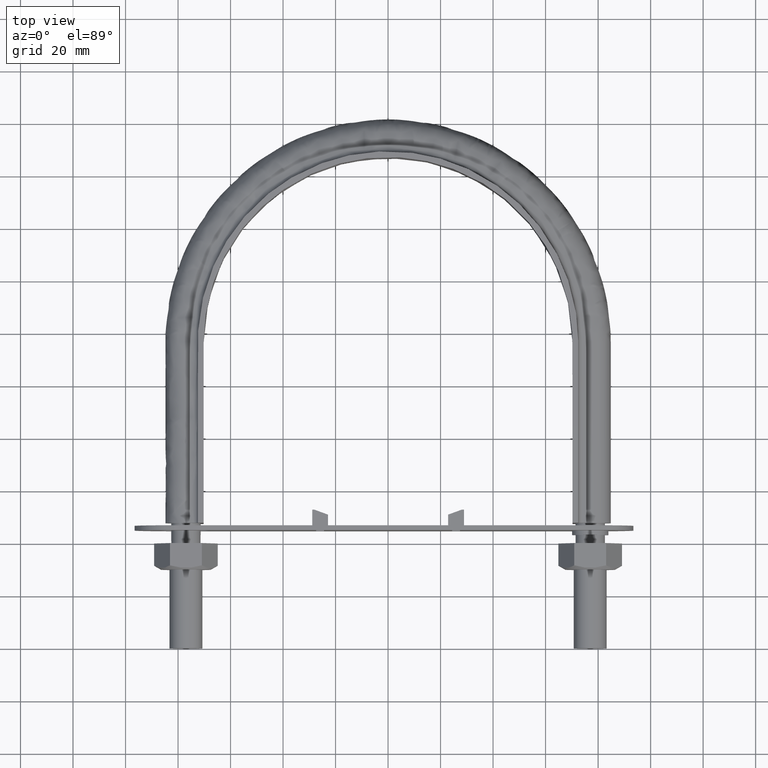
[diagram: clean part render]
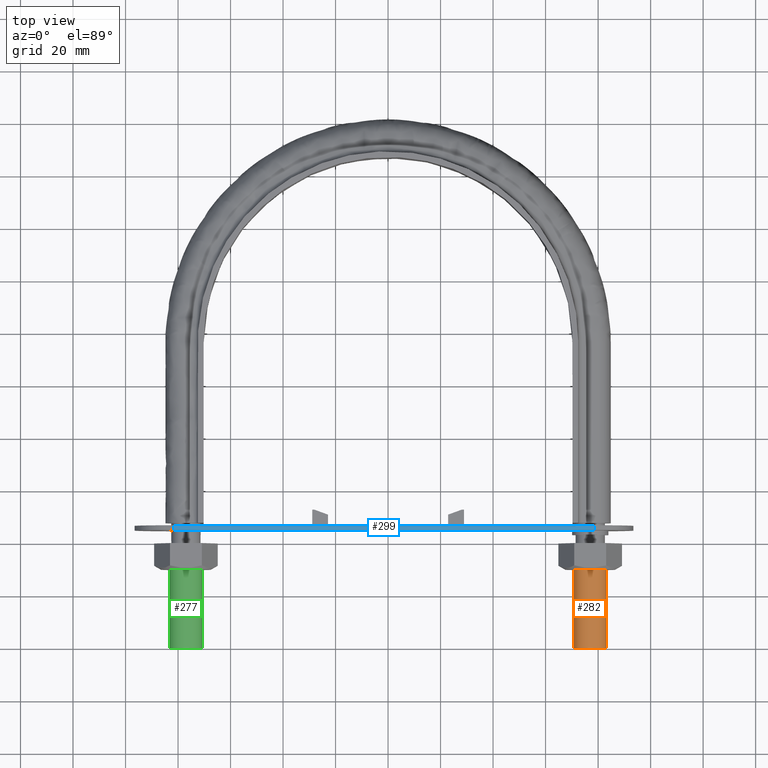
[diagram: same view with three faces highlighted in distinct colors, each labeled with its STEP entity id]
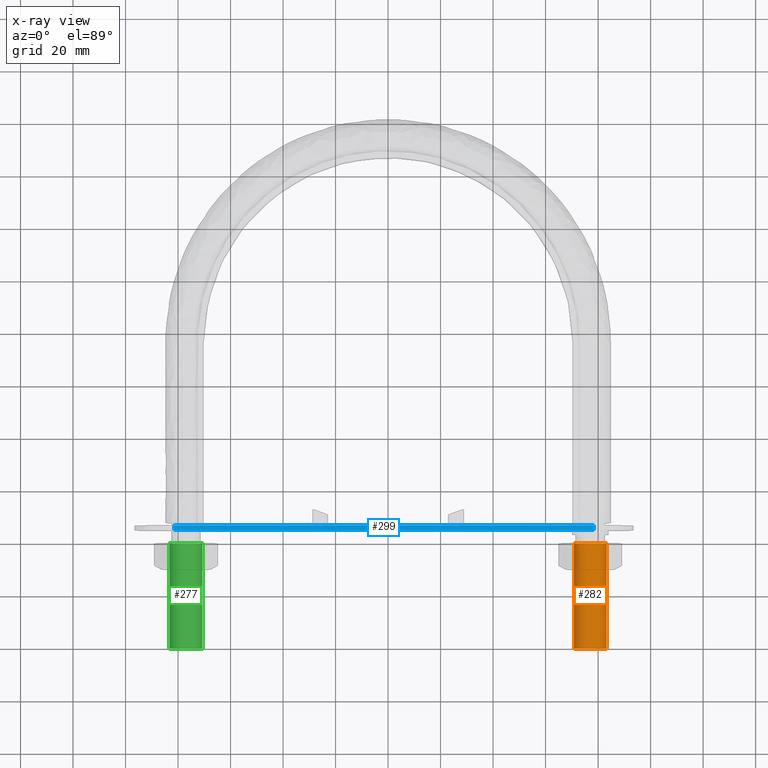
[diagram: x-ray of the same camera — body ghosted, the three highlighted faces saturated]
A machine part, top view with three faces highlighted in distinct colors.
The next image is the same camera in x-ray (body ghosted, the three faces saturated) — at least one of them is partly hidden behind the body in this view.
Their STEP definitions:

[orange] entity #282 — the highlighted cylindrical surface (bore or boss wall) has radius 6.25 mm, axis along (0, 1, -0).
#282 = ADVANCED_FACE( '', ( #384, #385 ), #386, .T. );
#384 = FACE_OUTER_BOUND( '', #1417, .T. );
#385 = FACE_OUTER_BOUND( '', #1418, .T. );
#386 = CYLINDRICAL_SURFACE( '', #1419, 6.25000000000001 );
#1417 = EDGE_LOOP( '', ( #1685 ) );
#1418 = EDGE_LOOP( '', ( #1686 ) );
#1419 = AXIS2_PLACEMENT_3D( '', #1687, #1688, #1689 );
#1685 = ORIENTED_EDGE( '', *, *, #2176, .T. );
#1686 = ORIENTED_EDGE( '', *, *, #2174, .F. );
#1687 = CARTESIAN_POINT( '', ( 77.0000000000000, 40.0000000000000, -1.22460635382238E-014 ) );
#1688 = DIRECTION( '', ( 2.44921270764476E-016, 1.00000000000000, -3.06151588455594E-016 ) );
#1689 = DIRECTION( '', ( 1.00000000000000, -2.44921270764475E-016, 0.000000000000000 ) );
#2174 = EDGE_CURVE( '', #2373, #2373, #2374, .T. );
#2176 = EDGE_CURVE( '', #2377, #2377, #2378, .T. );
#2373 = VERTEX_POINT( '', #2863 );
#2374 = CIRCLE( '', #2864, 6.25000000000001 );
#2377 = VERTEX_POINT( '', #2867 );
#2378 = CIRCLE( '', #2868, 6.25000000000001 );
#2863 = CARTESIAN_POINT( '', ( 83.2500000000000, -1.09602268667103E-014, 0.000000000000000 ) );
#2864 = AXIS2_PLACEMENT_3D( '', #3340, #3341, #3342 );
#2867 = CARTESIAN_POINT( '', ( 83.2500000000000, 40.0000000000000, -1.22460635382238E-014 ) );
#2868 = AXIS2_PLACEMENT_3D( '', #3346, #3347, #3348 );
#3340 = CARTESIAN_POINT( '', ( 77.0000000000000, -9.42946892443230E-015, 4.71701209382677E-046 ) );
#3341 = DIRECTION( '', ( -2.44921270764475E-016, -1.00000000000000, 3.06151588455594E-016 ) );
#3342 = DIRECTION( '', ( 1.00000000000000, -2.44921270764475E-016, -7.54721935012283E-047 ) );
#3346 = CARTESIAN_POINT( '', ( 77.0000000000000, 40.0000000000000, -1.22460635382238E-014 ) );
#3347 = DIRECTION( '', ( -2.44921270764475E-016, -1.00000000000000, 3.06151588455594E-016 ) );
#3348 = DIRECTION( '', ( 1.00000000000000, -2.44921270764475E-016, -7.54721935012283E-047 ) );

[blue] entity #299 — the highlighted planar face has unit normal (0, -0, 1).
#299 = ADVANCED_FACE( '', ( #428 ), #429, .T. );
#428 = FACE_OUTER_BOUND( '', #1461, .T. );
#429 = PLANE( '', #1462 );
#1461 = EDGE_LOOP( '', ( #1830, #1831, #1832, #1833 ) );
#1462 = AXIS2_PLACEMENT_3D( '', #1834, #1835, #1836 );
#1830 = ORIENTED_EDGE( '', *, *, #2182, .F. );
#1831 = ORIENTED_EDGE( '', *, *, #2198, .F. );
#1832 = ORIENTED_EDGE( '', *, *, #2225, .T. );
#1833 = ORIENTED_EDGE( '', *, *, #2235, .T. );
#1834 = CARTESIAN_POINT( '', ( -81.5499999747987, 44.9100000002289, 15.0000001370384 ) );
#1835 = DIRECTION( '', ( 1.68042474379972E-009, -1.04599657885938E-013, 1.00000000000000 ) );
#1836 = DIRECTION( '', ( -1.00000000000000, 2.82548111446733E-012, 1.68042474379972E-009 ) );
#2182 = EDGE_CURVE( '', #2388, #2390, #2391, .T. );
#2198 = EDGE_CURVE( '', #2419, #2388, #2421, .T. );
#2225 = EDGE_CURVE( '', #2419, #2466, #2468, .T. );
#2235 = EDGE_CURVE( '', #2466, #2390, #2482, .T. );
#2388 = VERTEX_POINT( '', #2882 );
#2390 = VERTEX_POINT( '', #2884 );
#2391 = LINE( '', #2885, #2886 );
#2419 = VERTEX_POINT( '', #2922 );
#2421 = LINE( '', #2924, #2925 );
#2466 = VERTEX_POINT( '', #2992 );
#2468 = LINE( '', #2994, #2995 );
#2482 = LINE( '', #3015, #3016 );
#2882 = CARTESIAN_POINT( '', ( -81.5499999747936, 46.7100000002289, 15.0000001370386 ) );
#2884 = CARTESIAN_POINT( '', ( 78.4500000252064, 46.7099999997768, 14.9999998681707 ) );
#2885 = CARTESIAN_POINT( '', ( -81.5499999747936, 46.7100000002289, 15.0000001370386 ) );
#2886 = VECTOR( '', #3356, 1000.00000000000 );
#2922 = CARTESIAN_POINT( '', ( -81.5499999747987, 44.9100000002289, 15.0000001370384 ) );
#2924 = CARTESIAN_POINT( '', ( -81.5499999747987, 44.9100000002289, 15.0000001370384 ) );
#2925 = VECTOR( '', #3386, 1000.00000000000 );
#2992 = CARTESIAN_POINT( '', ( 78.4500000252013, 44.9099999997768, 14.9999998681705 ) );
#2994 = CARTESIAN_POINT( '', ( -81.5499999747987, 44.9100000002289, 15.0000001370384 ) );
#2995 = VECTOR( '', #3421, 1000.00000000000 );
#3015 = CARTESIAN_POINT( '', ( 78.4500000252013, 44.9099999997768, 14.9999998681705 ) );
#3016 = VECTOR( '', #3437, 1000.00000000000 );
#3356 = DIRECTION( '', ( 1.00000000000000, -2.82548111446733E-012, -1.68042474379972E-009 ) );
#3386 = DIRECTION( '', ( 2.82548111464310E-012, 1.00000000000000, 1.04599653137929E-013 ) );
#3421 = DIRECTION( '', ( 1.00000000000000, -2.82548111446733E-012, -1.68042474379972E-009 ) );
#3437 = DIRECTION( '', ( 2.82548111464310E-012, 1.00000000000000, 1.04599653137929E-013 ) );

[green] entity #277 — the highlighted cylindrical surface (bore or boss wall) has radius 6.25 mm, axis along (0, 1, -0).
#277 = ADVANCED_FACE( '', ( #370, #371 ), #372, .T. );
#370 = FACE_OUTER_BOUND( '', #1403, .T. );
#371 = FACE_OUTER_BOUND( '', #1404, .T. );
#372 = CYLINDRICAL_SURFACE( '', #1405, 6.25000000000001 );
#1403 = EDGE_LOOP( '', ( #1654 ) );
#1404 = EDGE_LOOP( '', ( #1655 ) );
#1405 = AXIS2_PLACEMENT_3D( '', #1656, #1657, #1658 );
#1654 = ORIENTED_EDGE( '', *, *, #2173, .T. );
#1655 = ORIENTED_EDGE( '', *, *, #2172, .F. );
#1656 = CARTESIAN_POINT( '', ( -77.0000000000000, 40.0000000000000, -1.22460635382238E-014 ) );
#1657 = DIRECTION( '', ( 2.44921270764476E-016, 1.00000000000000, -3.06151588455594E-016 ) );
#1658 = DIRECTION( '', ( 1.00000000000000, -2.44921270764475E-016, 0.000000000000000 ) );
#2172 = EDGE_CURVE( '', #2369, #2369, #2370, .T. );
#2173 = EDGE_CURVE( '', #2371, #2371, #2372, .T. );
#2369 = VERTEX_POINT( '', #2859 );
#2370 = CIRCLE( '', #2860, 6.25000000000001 );
#2371 = VERTEX_POINT( '', #2861 );
#2372 = CIRCLE( '', #2862, 6.25000000000001 );
#2859 = CARTESIAN_POINT( '', ( -70.7500000000000, 7.89871098215433E-015, 0.000000000000000 ) );
#2860 = AXIS2_PLACEMENT_3D( '', #3334, #3335, #3336 );
#2861 = CARTESIAN_POINT( '', ( -70.7500000000000, 40.0000000000000, -1.22460635382238E-014 ) );
#2862 = AXIS2_PLACEMENT_3D( '', #3337, #3338, #3339 );
#3334 = CARTESIAN_POINT( '', ( -77.0000000000000, 9.42946892443230E-015, -3.42113882891801E-046 ) );
#3335 = DIRECTION( '', ( -2.44921270764476E-016, -1.00000000000000, 3.06151588455594E-016 ) );
#3336 = DIRECTION( '', ( 1.00000000000000, -2.44921270764475E-016, 5.47382212626881E-047 ) );
#3337 = CARTESIAN_POINT( '', ( -77.0000000000000, 40.0000000000000, -1.22460635382238E-014 ) );
#3338 = DIRECTION( '', ( -2.44921270764476E-016, -1.00000000000000, 3.06151588455594E-016 ) );
#3339 = DIRECTION( '', ( 1.00000000000000, -2.44921270764475E-016, 5.47382212626881E-047 ) );